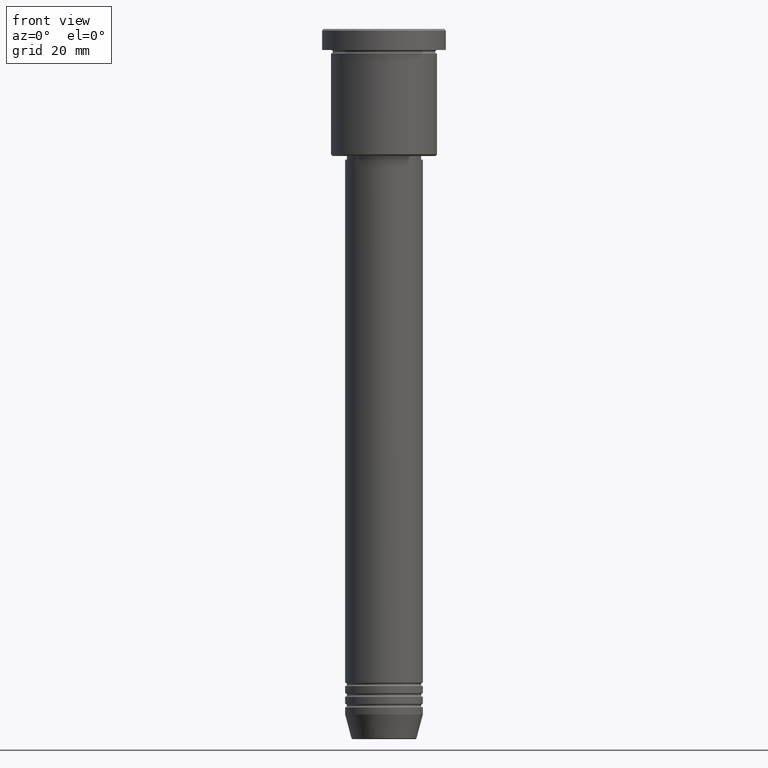
[diagram: clean part render]
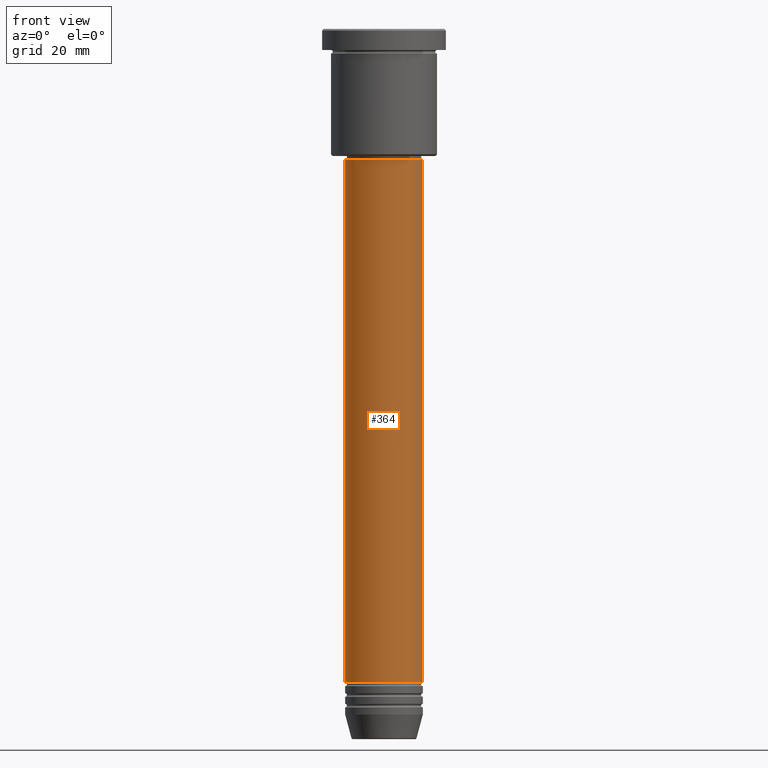
[diagram: same view with one face highlighted and labeled with its STEP entity id]
A machine part, front view. The second image highlights one B-rep face of the part: STEP entity #364.
In plain terms, the highlighted cylindrical surface (partial cylindrical patch) has radius 11 mm, axis along (-0, -0, 1).
Its self-contained STEP definition (entity closure, byte-faithful):
#12 = LINE ( 'NONE', #395, #562 ) ;
#32 = DIRECTION ( 'NONE',  ( -0.000000000000000000, -0.000000000000000000, 1.000000000000000000 ) ) ;
#79 = DIRECTION ( 'NONE',  ( 1.000000000000000000, 0.000000000000000000, 0.000000000000000000 ) ) ;
#111 = EDGE_LOOP ( 'NONE', ( #999, #132, #1174, #210 ) ) ;
#132 = ORIENTED_EDGE ( 'NONE', *, *, #593, .T. ) ;
#137 = CARTESIAN_POINT ( 'NONE',  ( 11.00000000000000000, 0.000000000000000000, -185.0000000000000000 ) ) ;
#207 = VECTOR ( 'NONE', #614, 1000.000000000000000 ) ;
#210 = ORIENTED_EDGE ( 'NONE', *, *, #305, .F. ) ;
#219 = VERTEX_POINT ( 'NONE', #1151 ) ;
#231 = DIRECTION ( 'NONE',  ( -0.000000000000000000, -0.000000000000000000, 1.000000000000000000 ) ) ;
#247 = VERTEX_POINT ( 'NONE', #592 ) ;
#287 = DIRECTION ( 'NONE',  ( -0.000000000000000000, -0.000000000000000000, 1.000000000000000000 ) ) ;
#289 = DIRECTION ( 'NONE',  ( 1.000000000000000000, 0.000000000000000000, 0.000000000000000000 ) ) ;
#305 = EDGE_CURVE ( 'NONE', #247, #219, #792, .T. ) ;
#344 = VERTEX_POINT ( 'NONE', #682 ) ;
#364 = ADVANCED_FACE ( 'NONE', ( #644 ), #548, .T. ) ;
#379 = AXIS2_PLACEMENT_3D ( 'NONE', #677, #231, #779 ) ;
#395 = CARTESIAN_POINT ( 'NONE',  ( 11.00000000000000000, 0.000000000000000000, 0.000000000000000000 ) ) ;
#496 = LINE ( 'NONE', #859, #207 ) ;
#535 = DIRECTION ( 'NONE',  ( -0.000000000000000000, -0.000000000000000000, 1.000000000000000000 ) ) ;
#548 = CYLINDRICAL_SURFACE ( 'NONE', #615, 11.00000000000000000 ) ;
#562 = VECTOR ( 'NONE', #287, 1000.000000000000000 ) ;
#592 = CARTESIAN_POINT ( 'NONE',  ( -11.00000000000000000, 1.347111479062088405E-15, -37.00000000000001421 ) ) ;
#593 = EDGE_CURVE ( 'NONE', #344, #716, #736, .T. ) ;
#614 = DIRECTION ( 'NONE',  ( -0.000000000000000000, -0.000000000000000000, 1.000000000000000000 ) ) ;
#615 = AXIS2_PLACEMENT_3D ( 'NONE', #991, #535, #79 ) ;
#644 = FACE_OUTER_BOUND ( 'NONE', #111, .T. ) ;
#670 = CARTESIAN_POINT ( 'NONE',  ( 0.000000000000000000, 0.000000000000000000, -185.0000000000000000 ) ) ;
#677 = CARTESIAN_POINT ( 'NONE',  ( 0.000000000000000000, 0.000000000000000000, -37.00000000000001421 ) ) ;
#682 = CARTESIAN_POINT ( 'NONE',  ( -11.00000000000000000, 1.347111479062088405E-15, -185.0000000000000000 ) ) ;
#714 = AXIS2_PLACEMENT_3D ( 'NONE', #670, #32, #289 ) ;
#716 = VERTEX_POINT ( 'NONE', #137 ) ;
#736 = CIRCLE ( 'NONE', #714, 11.00000000000000000 ) ;
#779 = DIRECTION ( 'NONE',  ( 1.000000000000000000, 0.000000000000000000, 0.000000000000000000 ) ) ;
#787 = EDGE_CURVE ( 'NONE', #344, #247, #496, .T. ) ;
#792 = CIRCLE ( 'NONE', #379, 11.00000000000000000 ) ;
#859 = CARTESIAN_POINT ( 'NONE',  ( -11.00000000000000000, 1.347111479062088405E-15, 0.000000000000000000 ) ) ;
#950 = EDGE_CURVE ( 'NONE', #716, #219, #12, .T. ) ;
#991 = CARTESIAN_POINT ( 'NONE',  ( 0.000000000000000000, 0.000000000000000000, 0.000000000000000000 ) ) ;
#999 = ORIENTED_EDGE ( 'NONE', *, *, #787, .F. ) ;
#1151 = CARTESIAN_POINT ( 'NONE',  ( 11.00000000000000000, 0.000000000000000000, -37.00000000000001421 ) ) ;
#1174 = ORIENTED_EDGE ( 'NONE', *, *, #950, .T. ) ;